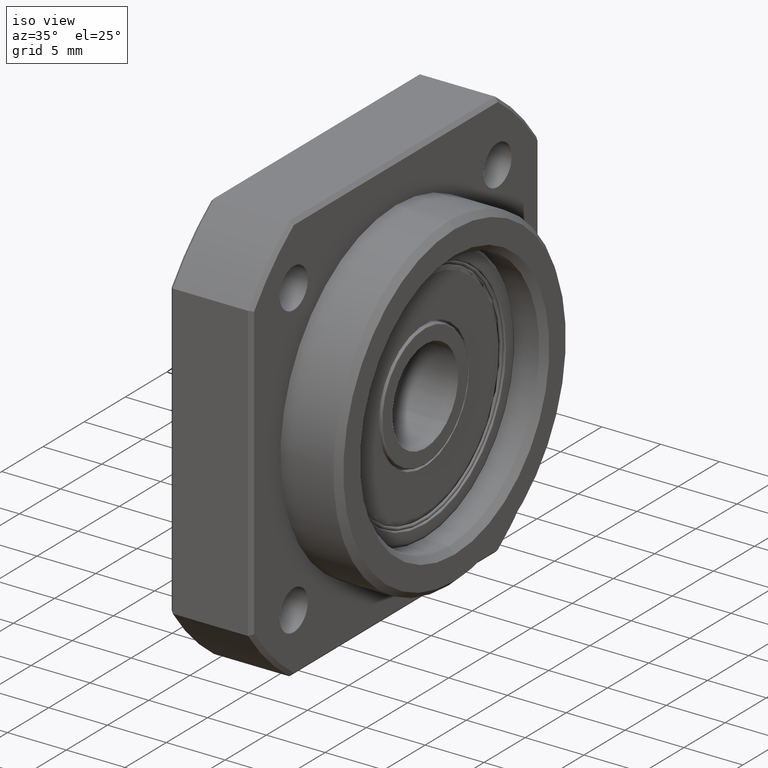
[diagram: clean part render]
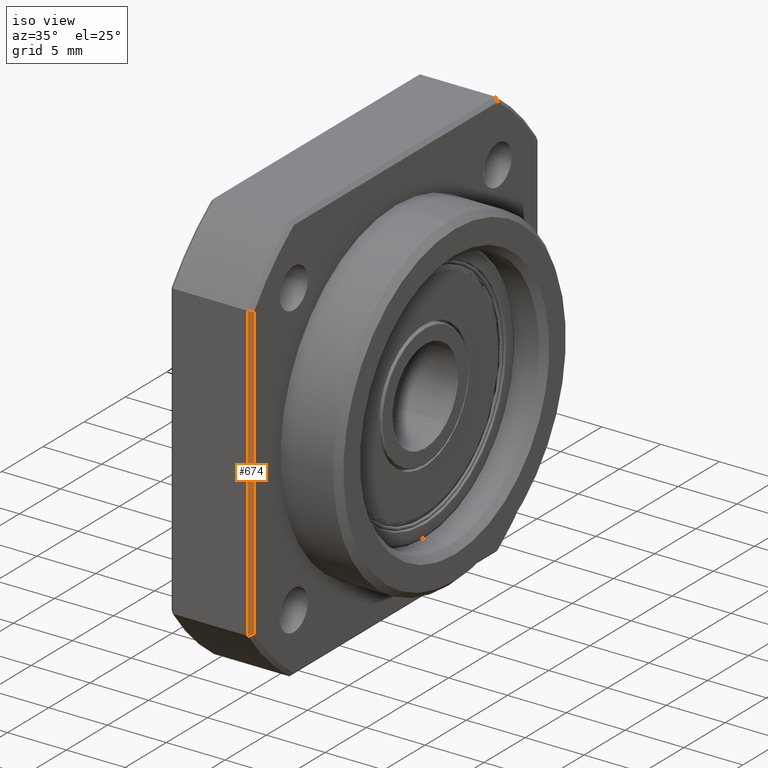
[diagram: same view with one face highlighted and labeled with its STEP entity id]
A machine part, iso view. The second image highlights one B-rep face of the part: STEP entity #674.
In plain terms, the highlighted planar face has unit normal (0.7071, -0.7071, 0).
Its self-contained STEP definition (entity closure, byte-faithful):
#240 = VERTEX_POINT ( 'NONE', #1131 ) ;
#297 = EDGE_CURVE ( 'NONE', #346, #298, #1200, .T. ) ;
#298 = VERTEX_POINT ( 'NONE', #1196 ) ;
#299 = VERTEX_POINT ( 'NONE', #1195 ) ;
#346 = VERTEX_POINT ( 'NONE', #1381 ) ;
#404 = EDGE_CURVE ( 'NONE', #240, #299, #4378, .T. ) ;
#551 = EDGE_LOOP ( 'NONE', ( #557, #889, #890, #553 ) ) ;
#552 = EDGE_CURVE ( 'NONE', #299, #346, #1573, .T. ) ;
#553 = ORIENTED_EDGE ( 'NONE', *, *, #404, .F. ) ;
#557 = ORIENTED_EDGE ( 'NONE', *, *, #565, .T. ) ;
#565 = EDGE_CURVE ( 'NONE', #240, #298, #1663, .T. ) ;
#674 = ADVANCED_FACE ( 'NONE', ( #1685 ), #1684, .T. ) ;
#889 = ORIENTED_EDGE ( 'NONE', *, *, #297, .F. ) ;
#890 = ORIENTED_EDGE ( 'NONE', *, *, #552, .F. ) ;
#1131 = CARTESIAN_POINT ( 'NONE',  ( 6.700000000000011700, -17.50000000000000700, -12.48999599679678100 ) ) ;
#1195 = CARTESIAN_POINT ( 'NONE',  ( 6.700000000000011700, -17.50000000000000700, 12.48999599679678100 ) ) ;
#1196 = CARTESIAN_POINT ( 'NONE',  ( 7.000000000000000900, -17.20000000000000600, -12.39354670786372400 ) ) ;
#1197 = DIRECTION ( 'NONE',  ( 0.0000000000000000000, 0.0000000000000000000, -1.000000000000000000 ) ) ;
#1198 = VECTOR ( 'NONE', #1197, 1000.000000000000000 ) ;
#1199 = CARTESIAN_POINT ( 'NONE',  ( 7.000000000000000900, -17.20000000000000600, -12.48999599679678100 ) ) ;
#1200 = LINE ( 'NONE', #1199, #1198 ) ;
#1381 = CARTESIAN_POINT ( 'NONE',  ( 7.000000000000000900, -17.20000000000000600, 12.39354670786372400 ) ) ;
#1568 = CARTESIAN_POINT ( 'NONE',  ( 7.000000000000000900, -17.20000000000000600, 12.39354670786372400 ) ) ;
#1569 = CARTESIAN_POINT ( 'NONE',  ( 6.900019152900656000, -17.29998084709935600, 12.42581538751001500 ) ) ;
#1570 = CARTESIAN_POINT ( 'NONE',  ( 6.800018942298718700, -17.39998105770129300, 12.45796429964513100 ) ) ;
#1571 = CARTESIAN_POINT ( 'NONE',  ( 6.700000000000011700, -17.50000000000000700, 12.48999599679678100 ) ) ;
#1573 = B_SPLINE_CURVE_WITH_KNOTS ( 'NONE', 3,
 ( #1571, #1570, #1569, #1568 ),
 .UNSPECIFIED., .F., .F.,
 ( 4, 4 ),
 ( 0.0000000000000000000, 0.0004350890315046856300 ),
 .UNSPECIFIED. ) ;
#1658 = CARTESIAN_POINT ( 'NONE',  ( 7.000000000000000900, -17.20000000000000600, -12.39354670786372400 ) ) ;
#1659 = CARTESIAN_POINT ( 'NONE',  ( 6.900019152900656000, -17.29998084709935600, -12.42581538751001500 ) ) ;
#1660 = CARTESIAN_POINT ( 'NONE',  ( 6.800018942298718700, -17.39998105770129300, -12.45796429964513100 ) ) ;
#1661 = CARTESIAN_POINT ( 'NONE',  ( 6.700000000000011700, -17.50000000000000700, -12.48999599679678100 ) ) ;
#1663 = B_SPLINE_CURVE_WITH_KNOTS ( 'NONE', 3,
 ( #1661, #1660, #1659, #1658 ),
 .UNSPECIFIED., .F., .F.,
 ( 4, 4 ),
 ( 0.0000000000000000000, 0.0004350890315046856300 ),
 .UNSPECIFIED. ) ;
#1673 = DIRECTION ( 'NONE',  ( 0.7071067811865414700, 0.7071067811865536800, 0.0000000000000000000 ) ) ;
#1674 = DIRECTION ( 'NONE',  ( 0.7071067811865536800, -0.7071067811865414700, 0.0000000000000000000 ) ) ;
#1675 = CARTESIAN_POINT ( 'NONE',  ( 6.700000000000004600, -17.50000000000000700, -17.49999999999994300 ) ) ;
#1676 = AXIS2_PLACEMENT_3D ( 'NONE', #1675, #1674, #1673 ) ;
#1684 = PLANE ( 'NONE',  #1676 ) ;
#1685 = FACE_OUTER_BOUND ( 'NONE', #551, .T. ) ;
#4375 = DIRECTION ( 'NONE',  ( 0.0000000000000000000, 0.0000000000000000000, 1.000000000000000000 ) ) ;
#4376 = VECTOR ( 'NONE', #4375, 1000.000000000000000 ) ;
#4377 = CARTESIAN_POINT ( 'NONE',  ( 6.700000000000004600, -17.50000000000000700, 12.48999599679678100 ) ) ;
#4378 = LINE ( 'NONE', #4377, #4376 ) ;